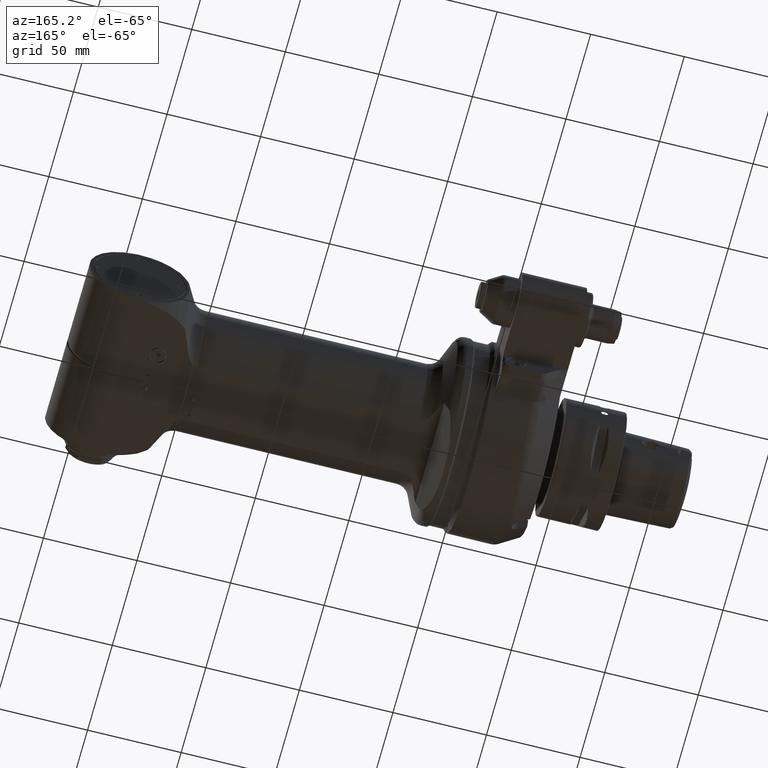
[diagram: clean part render]
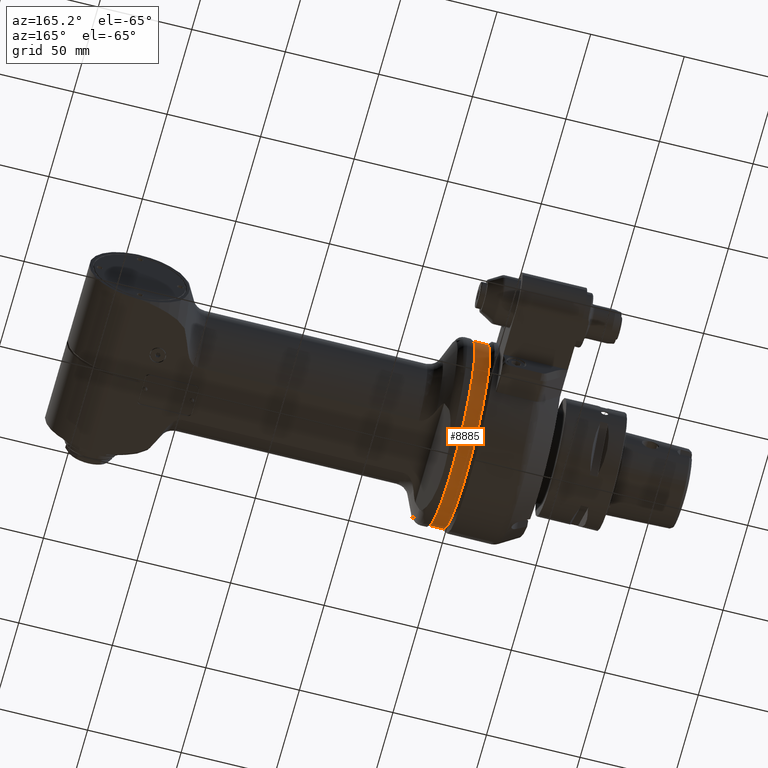
[diagram: same view with one face highlighted and labeled with its STEP entity id]
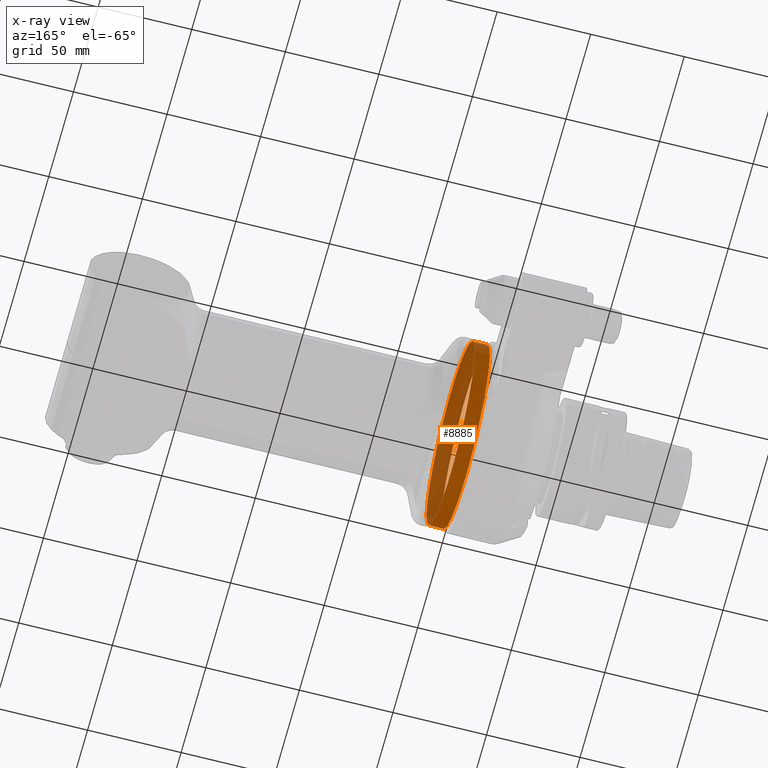
[diagram: x-ray of the same camera — body ghosted, the highlighted face saturated]
A machine part, auxiliary view. The second image highlights one B-rep face of the part: STEP entity #8885.
The next image is the same camera in x-ray: the body ghosted, the highlighted face saturated — about 46% of this face is hidden behind the body in this view.
In plain terms, the highlighted cylindrical surface (bore or boss wall) has radius 49 mm, axis along (1, -0, -0).
Its self-contained STEP definition (entity closure, byte-faithful):
#1085=FACE_OUTER_BOUND('',#1669,.T.);
#1669=EDGE_LOOP('',(#7759,#7760,#7761,#7762,#7763));
#2137=CIRCLE('',#9763,1.92913385826772);
#2138=CIRCLE('',#9764,1.92913385826772);
#2139=CIRCLE('',#9766,1.92913385826772);
#2852=LINE('',#57443,#3408);
#3408=VECTOR('',#11821,1.92913385826772);
#4237=VERTEX_POINT('',#57436);
#4238=VERTEX_POINT('',#57438);
#4239=VERTEX_POINT('',#57442);
#5449=EDGE_CURVE('',#4237,#4238,#2137,.T.);
#5450=EDGE_CURVE('',#4238,#4237,#2138,.T.);
#5451=EDGE_CURVE('',#4238,#4239,#2852,.T.);
#5452=EDGE_CURVE('',#4239,#4239,#2139,.T.);
#7759=ORIENTED_EDGE('',*,*,#5450,.F.);
#7760=ORIENTED_EDGE('',*,*,#5451,.T.);
#7761=ORIENTED_EDGE('',*,*,#5452,.F.);
#7762=ORIENTED_EDGE('',*,*,#5451,.F.);
#7763=ORIENTED_EDGE('',*,*,#5449,.F.);
#8454=CYLINDRICAL_SURFACE('',#9765,1.92913385826772);
#8885=ADVANCED_FACE('',(#1085),#8454,.T.);
#9763=AXIS2_PLACEMENT_3D('',#57439,#11815,#11816);
#9764=AXIS2_PLACEMENT_3D('',#57440,#11817,#11818);
#9765=AXIS2_PLACEMENT_3D('',#57441,#11819,#11820);
#9766=AXIS2_PLACEMENT_3D('',#57444,#11822,#11823);
#11815=DIRECTION('center_axis',(1.,0.,0.));
#11816=DIRECTION('ref_axis',(0.,-1.,0.));
#11817=DIRECTION('center_axis',(1.,0.,0.));
#11818=DIRECTION('ref_axis',(0.,-1.,0.));
#11819=DIRECTION('center_axis',(1.,0.,0.));
#11820=DIRECTION('ref_axis',(0.,0.087155742747664,-0.996194698091745));
#11821=DIRECTION('',(-1.,0.,0.));
#11822=DIRECTION('center_axis',(-1.,0.,0.));
#11823=DIRECTION('ref_axis',(0.,-0.087155742747664,0.996194698091745));
#57436=CARTESIAN_POINT('',(0.472440944881889,1.92913385826772,2.36250760465434E-16));
#57438=CARTESIAN_POINT('',(0.47244094488189,-0.168135094276969,1.92179292151575));
#57439=CARTESIAN_POINT('Origin',(0.47244094488189,0.,0.));
#57440=CARTESIAN_POINT('Origin',(0.47244094488189,0.,0.));
#57441=CARTESIAN_POINT('Origin',(0.318897637795276,0.,0.));
#57442=CARTESIAN_POINT('',(0.157480314960709,-0.168135094276969,1.92179292151575));
#57443=CARTESIAN_POINT('',(0.318897637795276,-0.16813509427699,1.92179292151557));
#57444=CARTESIAN_POINT('Origin',(0.157480314960709,0.,0.));